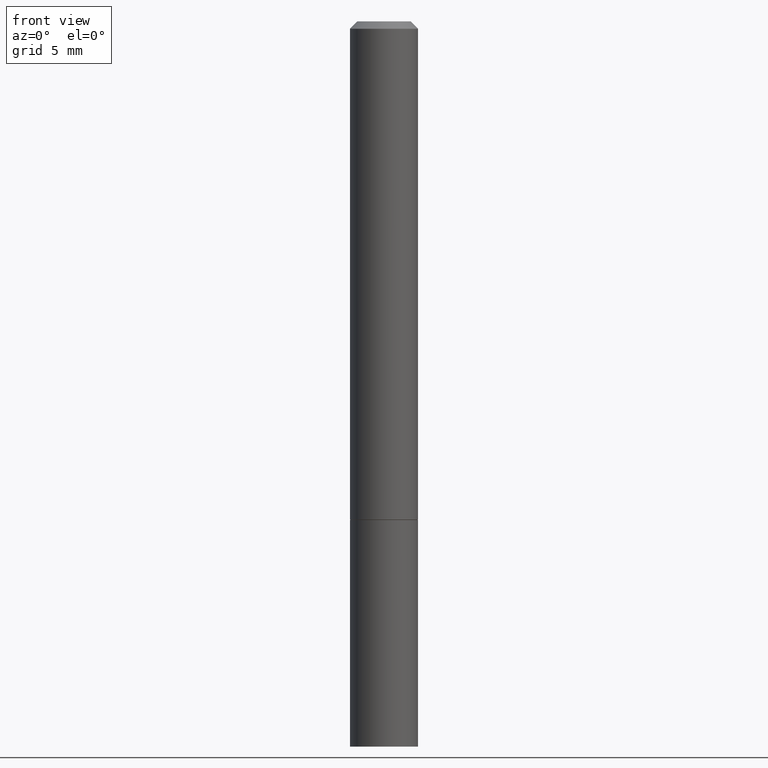
[diagram: clean part render]
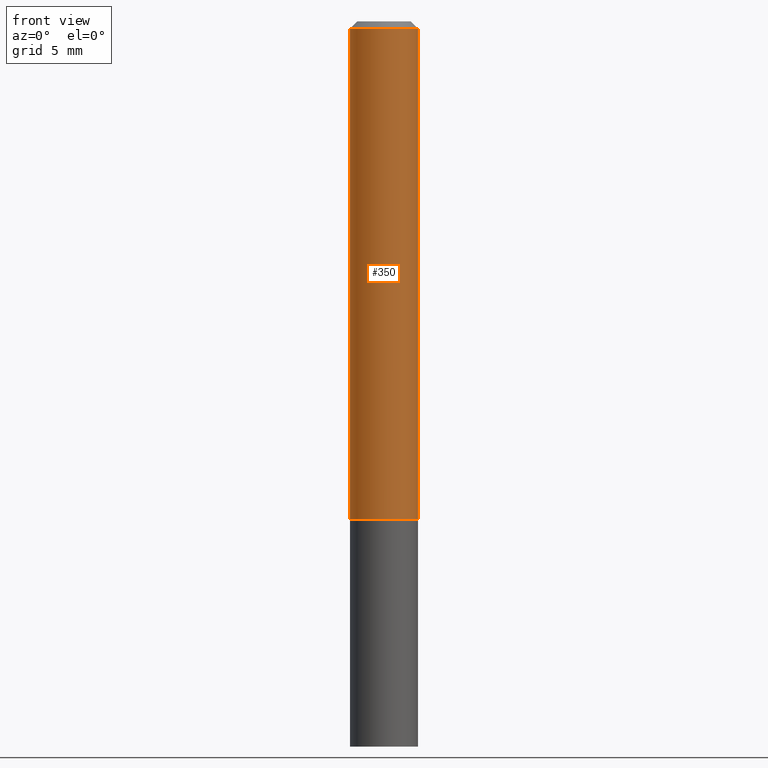
[diagram: same view with one face highlighted and labeled with its STEP entity id]
A machine part, front view. The second image highlights one B-rep face of the part: STEP entity #350.
In plain terms, the highlighted cylindrical surface (edge-blend (fillet) strip) has radius 2.3812 mm, axis along (-0, 0, 1).
Its self-contained STEP definition (entity closure, byte-faithful):
#22 = FACE_OUTER_BOUND ( 'NONE', #187, .T. ) ;
#25 = DIRECTION ( 'NONE',  ( -2.445468806185136597E-29, 3.491481338843145583E-15, 1.000000000000000000 ) ) ;
#33 = ORIENTED_EDGE ( 'NONE', *, *, #287, .F. ) ;
#37 = EDGE_CURVE ( 'NONE', #68, #130, #305, .T. ) ;
#47 = DIRECTION ( 'NONE',  ( 1.000000000000000000, -6.982962677686261189E-15, 0.000000000000000000 ) ) ;
#57 = CARTESIAN_POINT ( 'NONE',  ( 4.890937612370282792E-31, -6.982962677686303935E-17, -0.02000000000000003858 ) ) ;
#61 = DIRECTION ( 'NONE',  ( -2.445468806185136877E-29, 3.491481338843145188E-15, 1.000000000000000000 ) ) ;
#68 = VERTEX_POINT ( 'NONE', #331 ) ;
#71 = ORIENTED_EDGE ( 'NONE', *, *, #304, .F. ) ;
#78 = EDGE_CURVE ( 'NONE', #147, #68, #286, .T. ) ;
#86 = CARTESIAN_POINT ( 'NONE',  ( -0.09374999999999981959, 5.848231242562232198E-16, -0.02000000000000003858 ) ) ;
#103 = CARTESIAN_POINT ( 'NONE',  ( -0.09375000000000001388, -1.767428678398576122E-15, -1.373999999999999888 ) ) ;
#117 = DIRECTION ( 'NONE',  ( 1.000000000000000000, -6.982962677686267499E-15, 0.000000000000000000 ) ) ;
#128 = ORIENTED_EDGE ( 'NONE', *, *, #78, .T. ) ;
#130 = VERTEX_POINT ( 'NONE', #245 ) ;
#138 = DIRECTION ( 'NONE',  ( -2.445468806185136597E-29, 3.491481338843145583E-15, 1.000000000000000000 ) ) ;
#142 = AXIS2_PLACEMENT_3D ( 'NONE', #283, #25, #252 ) ;
#147 = VERTEX_POINT ( 'NONE', #103 ) ;
#157 = CIRCLE ( 'NONE', #326, 0.09374999999999981959 ) ;
#180 = ORIENTED_EDGE ( 'NONE', *, *, #37, .T. ) ;
#182 = AXIS2_PLACEMENT_3D ( 'NONE', #219, #138, #47 ) ;
#187 = EDGE_LOOP ( 'NONE', ( #71, #128, #180, #33 ) ) ;
#200 = LINE ( 'NONE', #309, #241 ) ;
#217 = DIRECTION ( 'NONE',  ( -2.445468806185136877E-29, 3.491481338843145188E-15, 1.000000000000000000 ) ) ;
#219 = CARTESIAN_POINT ( 'NONE',  ( 3.360074139698377778E-29, -4.797295359570481134E-15, -1.373999999999999888 ) ) ;
#241 = VECTOR ( 'NONE', #61, 39.37007874015748143 ) ;
#245 = CARTESIAN_POINT ( 'NONE',  ( 0.09374999999999981959, -7.130013140679429031E-16, -0.02000000000000003858 ) ) ;
#249 = CYLINDRICAL_SURFACE ( 'NONE', #142, 0.09374999999999991673 ) ;
#252 = DIRECTION ( 'NONE',  ( 1.000000000000000000, -6.982962677686266711E-15, 4.876176775795935793E-29 ) ) ;
#283 = CARTESIAN_POINT ( 'NONE',  ( 0.000000000000000000, 0.000000000000000000, 0.000000000000000000 ) ) ;
#286 = CIRCLE ( 'NONE', #182, 0.09375000000000001388 ) ;
#287 = EDGE_CURVE ( 'NONE', #317, #130, #157, .T. ) ;
#291 = VECTOR ( 'NONE', #217, 39.37007874015748143 ) ;
#304 = EDGE_CURVE ( 'NONE', #147, #317, #200, .T. ) ;
#305 = LINE ( 'NONE', #334, #291 ) ;
#309 = CARTESIAN_POINT ( 'NONE',  ( -0.09374999999999991673, 6.661338147750933326E-16, -4.611501647113969791E-30 ) ) ;
#317 = VERTEX_POINT ( 'NONE', #86 ) ;
#326 = AXIS2_PLACEMENT_3D ( 'NONE', #57, #363, #117 ) ;
#331 = CARTESIAN_POINT ( 'NONE',  ( 0.09375000000000001388, -5.451948110603568638E-15, -1.373999999999999888 ) ) ;
#334 = CARTESIAN_POINT ( 'NONE',  ( 0.09374999999999991673, -6.546527510330869125E-16, 4.571415727308685602E-30 ) ) ;
#350 = ADVANCED_FACE ( 'NONE', ( #22 ), #249, .T. ) ;
#363 = DIRECTION ( 'NONE',  ( -2.445468806185136597E-29, 3.491481338843145583E-15, 1.000000000000000000 ) ) ;